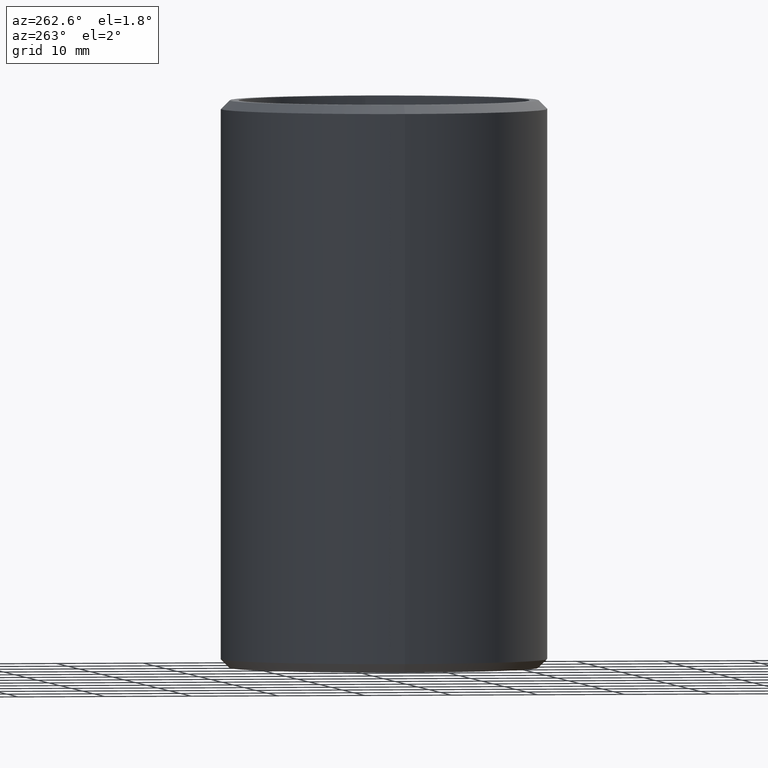
[diagram: clean part render]
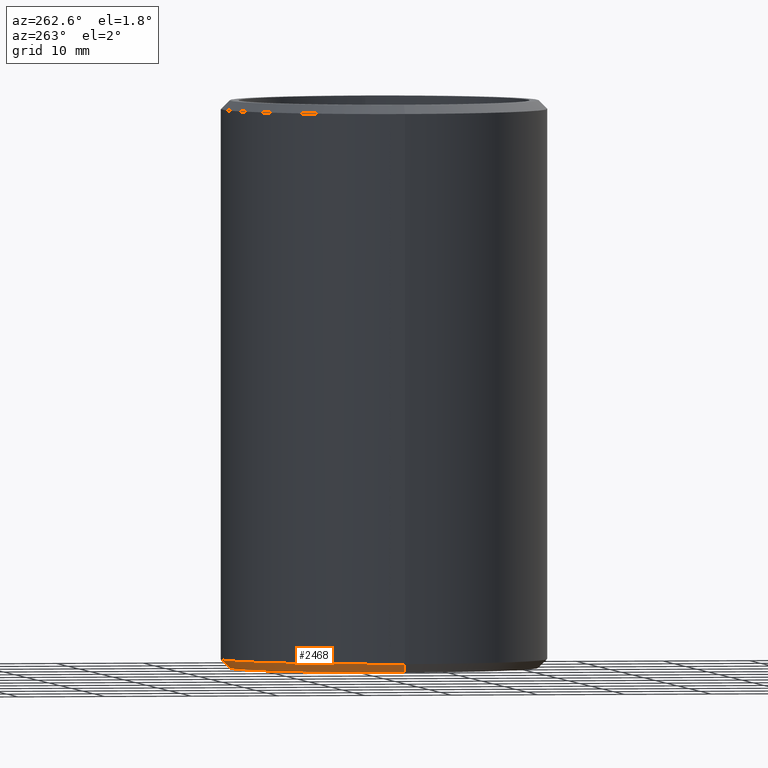
[diagram: same view with one face highlighted and labeled with its STEP entity id]
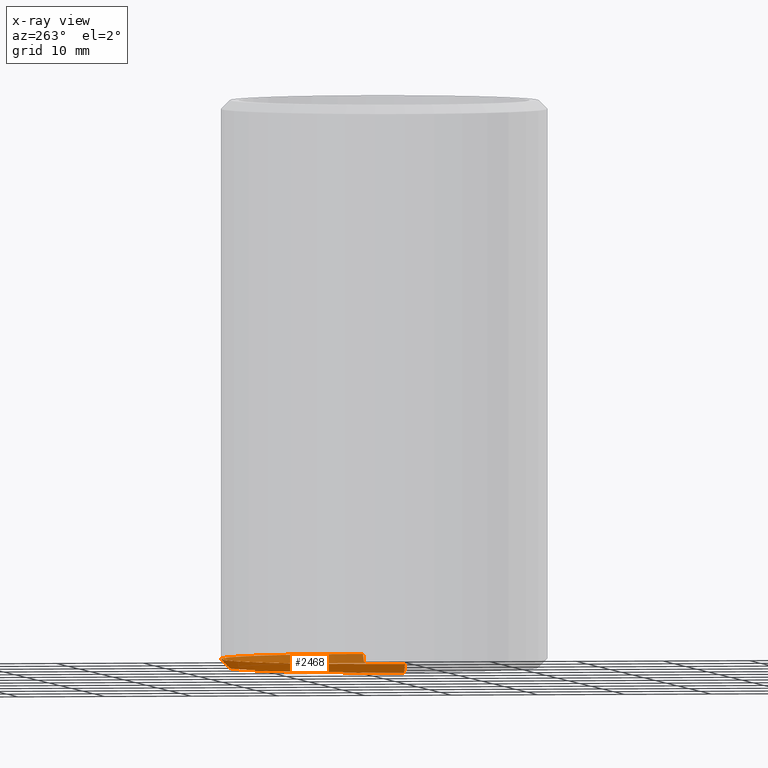
[diagram: x-ray of the same camera — body ghosted, the highlighted face saturated]
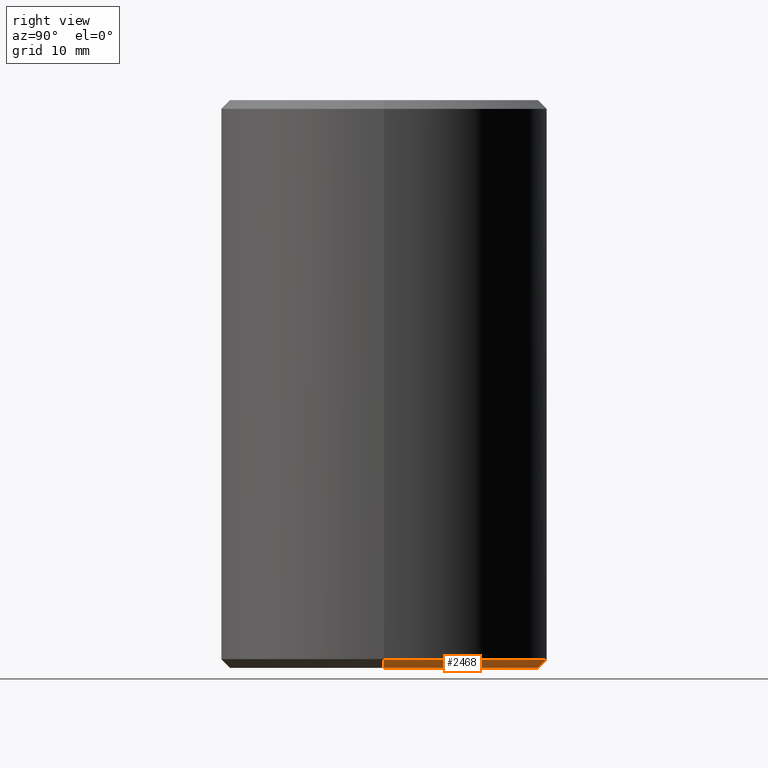
[diagram: same view with one face highlighted and labeled with its STEP entity id]
A machine part, auxiliary view. The second image highlights one B-rep face of the part: STEP entity #2468.
The next image is the same camera in x-ray: the body ghosted, the highlighted face saturated — about 41% of this face is hidden behind the body in this view.
A second angle (right view) of the same face is appended — the face is thin or edge-on in the first view.
In plain terms, the highlighted conical surface has half-angle 45 deg.
Its self-contained STEP definition (entity closure, byte-faithful):
#18 = VERTEX_POINT ( 'NONE', #12883 ) ;
#103 = AXIS2_PLACEMENT_3D ( 'NONE', #7801, #11657, #1718 ) ;
#283 = ORIENTED_EDGE ( 'NONE', *, *, #6783, .F. ) ;
#416 = AXIS2_PLACEMENT_3D ( 'NONE', #6167, #11253, #7268 ) ;
#542 = CARTESIAN_POINT ( 'NONE',  ( 0.0000000000000000000, 0.0000000000000000000, -31.49999999999998600 ) ) ;
#845 = ORIENTED_EDGE ( 'NONE', *, *, #4332, .F. ) ;
#1410 = LINE ( 'NONE', #9856, #2033 ) ;
#1718 = DIRECTION ( 'NONE',  ( 1.000000000000000000, 0.0000000000000000000, 0.0000000000000000000 ) ) ;
#2033 = VECTOR ( 'NONE', #7047, 1000.000000000000000 ) ;
#2468 = ADVANCED_FACE ( 'NONE', ( #12448 ), #12931, .T. ) ;
#2645 = CIRCLE ( 'NONE', #103, 17.69999999999997800 ) ;
#3037 = VERTEX_POINT ( 'NONE', #9423 ) ;
#4146 = ORIENTED_EDGE ( 'NONE', *, *, #5275, .T. ) ;
#4284 = DIRECTION ( 'NONE',  ( -0.7071067811865487900, 8.659560562354950100E-017, 0.7071067811865463500 ) ) ;
#4332 = EDGE_CURVE ( 'NONE', #6600, #3037, #2645, .T. ) ;
#5024 = ORIENTED_EDGE ( 'NONE', *, *, #12551, .F. ) ;
#5275 = EDGE_CURVE ( 'NONE', #6600, #18, #5961, .T. ) ;
#5961 = LINE ( 'NONE', #9405, #10882 ) ;
#6167 = CARTESIAN_POINT ( 'NONE',  ( 0.0000000000000000000, 0.0000000000000000000, -31.49999999999998600 ) ) ;
#6600 = VERTEX_POINT ( 'NONE', #7931 ) ;
#6783 = EDGE_CURVE ( 'NONE', #3037, #10919, #1410, .T. ) ;
#7047 = DIRECTION ( 'NONE',  ( 0.7071067811865487900, 0.0000000000000000000, 0.7071067811865463500 ) ) ;
#7093 = CIRCLE ( 'NONE', #416, 18.69999999999999900 ) ;
#7249 = AXIS2_PLACEMENT_3D ( 'NONE', #542, #11689, #7737 ) ;
#7268 = DIRECTION ( 'NONE',  ( 1.000000000000000000, 0.0000000000000000000, 0.0000000000000000000 ) ) ;
#7737 = DIRECTION ( 'NONE',  ( 1.000000000000000000, 0.0000000000000000000, 0.0000000000000000000 ) ) ;
#7801 = CARTESIAN_POINT ( 'NONE',  ( 0.0000000000000000000, 0.0000000000000000000, -32.50000000000000000 ) ) ;
#7931 = CARTESIAN_POINT ( 'NONE',  ( -17.69999999999997800, 2.228857174448181400E-015, -32.50000000000000000 ) ) ;
#8365 = EDGE_LOOP ( 'NONE', ( #845, #4146, #5024, #283 ) ) ;
#9405 = CARTESIAN_POINT ( 'NONE',  ( -18.69999999999999900, 2.290089514405550500E-015, -31.49999999999998600 ) ) ;
#9423 = CARTESIAN_POINT ( 'NONE',  ( 17.69999999999997800, 0.0000000000000000000, -32.50000000000000000 ) ) ;
#9856 = CARTESIAN_POINT ( 'NONE',  ( 18.69999999999999900, 0.0000000000000000000, -31.49999999999998600 ) ) ;
#10372 = CARTESIAN_POINT ( 'NONE',  ( 18.69999999999999900, 2.290089514405550500E-015, -31.49999999999998600 ) ) ;
#10882 = VECTOR ( 'NONE', #4284, 1000.000000000000000 ) ;
#10919 = VERTEX_POINT ( 'NONE', #10372 ) ;
#11253 = DIRECTION ( 'NONE',  ( -0.0000000000000000000, -0.0000000000000000000, 1.000000000000000000 ) ) ;
#11657 = DIRECTION ( 'NONE',  ( -0.0000000000000000000, -0.0000000000000000000, -1.000000000000000000 ) ) ;
#11689 = DIRECTION ( 'NONE',  ( -0.0000000000000000000, -0.0000000000000000000, 1.000000000000000000 ) ) ;
#12448 = FACE_OUTER_BOUND ( 'NONE', #8365, .T. ) ;
#12551 = EDGE_CURVE ( 'NONE', #10919, #18, #7093, .T. ) ;
#12883 = CARTESIAN_POINT ( 'NONE',  ( -18.69999999999999900, 0.0000000000000000000, -31.49999999999998600 ) ) ;
#12931 = CONICAL_SURFACE ( 'NONE', #7249, 18.69999999999999900, 0.7853981633974500600 ) ;